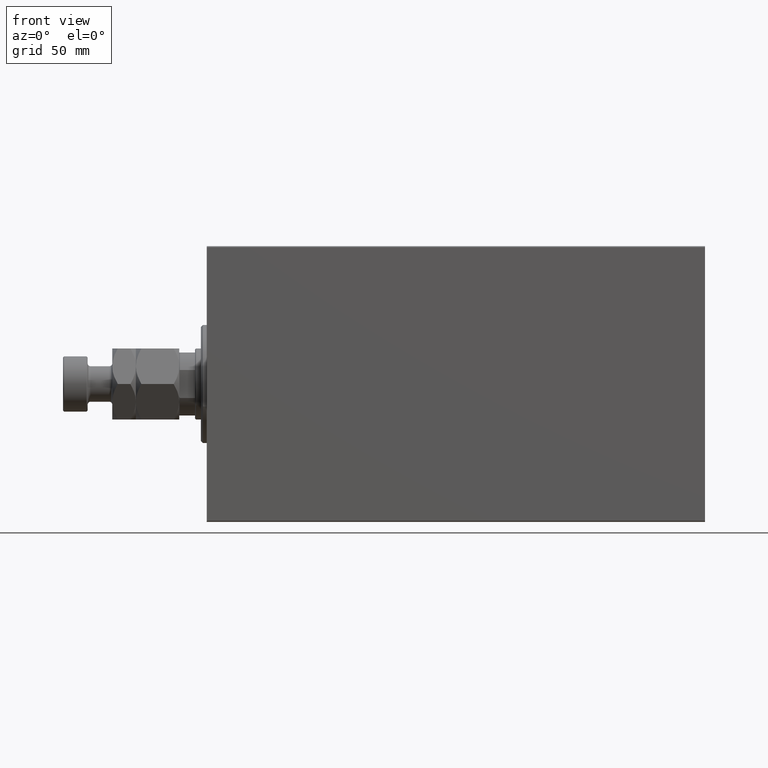
[diagram: clean part render]
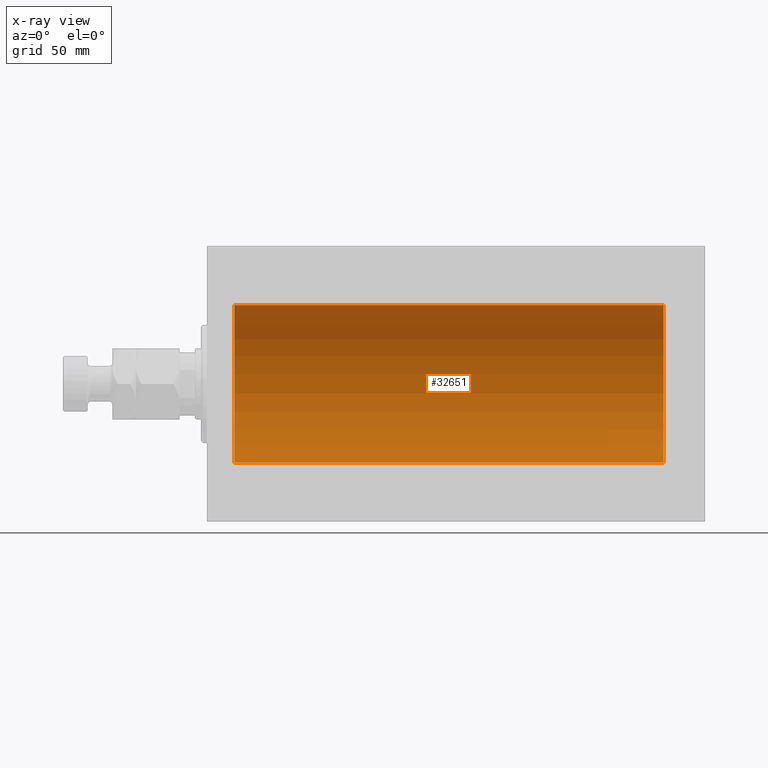
[diagram: x-ray — body ghosted, one internal face saturated and labeled with its STEP entity id]
A machine part, front view, then the same camera in x-ray: the body is ghosted and one INTERNAL B-rep face — a face not visible from any outside direction — is saturated and labeled: STEP entity #32651.
In plain terms, the highlighted cylindrical surface (partial cylindrical patch) has radius 40 mm, axis along (-1, -0, -0).
Its self-contained STEP definition (entity closure, byte-faithful):
#1254 = CARTESIAN_POINT ( 'NONE',  ( 232.0000000000000000, 0.000000000000000000, 0.000000000000000000 ) ) ;
#1352 = CARTESIAN_POINT ( 'NONE',  ( 232.0000000000000000, 0.000000000000000000, 40.00000000000000000 ) ) ;
#4658 = CARTESIAN_POINT ( 'NONE',  ( 13.99999999999998401, 0.000000000000000000, 0.000000000000000000 ) ) ;
#5338 = DIRECTION ( 'NONE',  ( -1.000000000000000000, 0.000000000000000000, 0.000000000000000000 ) ) ;
#5801 = ORIENTED_EDGE ( 'NONE', *, *, #20695, .F. ) ;
#5931 = DIRECTION ( 'NONE',  ( -1.000000000000000000, -0.000000000000000000, -0.000000000000000000 ) ) ;
#6146 = CYLINDRICAL_SURFACE ( 'NONE', #7213, 40.00000000000000000 ) ;
#6499 = VERTEX_POINT ( 'NONE', #14549 ) ;
#6609 = FACE_OUTER_BOUND ( 'NONE', #7399, .T. ) ;
#7213 = AXIS2_PLACEMENT_3D ( 'NONE', #40929, #5931, #34687 ) ;
#7399 = EDGE_LOOP ( 'NONE', ( #5801, #17660, #29783, #23721 ) ) ;
#7942 = CARTESIAN_POINT ( 'NONE',  ( 232.0000000000000000, 4.898587196589412237E-15, -40.00000000000000000 ) ) ;
#9050 = EDGE_CURVE ( 'NONE', #42573, #18667, #11945, .T. ) ;
#11945 = LINE ( 'NONE', #1352, #21057 ) ;
#12846 = VECTOR ( 'NONE', #29814, 1000.000000000000000 ) ;
#13565 = CARTESIAN_POINT ( 'NONE',  ( 13.99999999999998401, 4.898587196589412237E-15, -40.00000000000000000 ) ) ;
#14549 = CARTESIAN_POINT ( 'NONE',  ( 232.0000000000000000, 4.898587196589412237E-15, -40.00000000000000000 ) ) ;
#15079 = LINE ( 'NONE', #7942, #12846 ) ;
#17660 = ORIENTED_EDGE ( 'NONE', *, *, #34610, .F. ) ;
#18667 = VERTEX_POINT ( 'NONE', #30971 ) ;
#20695 = EDGE_CURVE ( 'NONE', #6499, #29087, #15079, .T. ) ;
#21057 = VECTOR ( 'NONE', #43480, 1000.000000000000000 ) ;
#21958 = AXIS2_PLACEMENT_3D ( 'NONE', #1254, #22445, #39249 ) ;
#22445 = DIRECTION ( 'NONE',  ( -1.000000000000000000, 0.000000000000000000, 0.000000000000000000 ) ) ;
#23721 = ORIENTED_EDGE ( 'NONE', *, *, #37439, .T. ) ;
#24251 = CIRCLE ( 'NONE', #42607, 40.00000000000000000 ) ;
#29087 = VERTEX_POINT ( 'NONE', #13565 ) ;
#29313 = DIRECTION ( 'NONE',  ( 0.000000000000000000, 0.000000000000000000, 1.000000000000000000 ) ) ;
#29783 = ORIENTED_EDGE ( 'NONE', *, *, #9050, .T. ) ;
#29814 = DIRECTION ( 'NONE',  ( -1.000000000000000000, -0.000000000000000000, -0.000000000000000000 ) ) ;
#30971 = CARTESIAN_POINT ( 'NONE',  ( 13.99999999999998401, 0.000000000000000000, 40.00000000000000000 ) ) ;
#32651 = ADVANCED_FACE ( 'NONE', ( #6609 ), #6146, .F. ) ;
#34610 = EDGE_CURVE ( 'NONE', #42573, #6499, #41785, .T. ) ;
#34687 = DIRECTION ( 'NONE',  ( 0.000000000000000000, 0.000000000000000000, 1.000000000000000000 ) ) ;
#37439 = EDGE_CURVE ( 'NONE', #18667, #29087, #24251, .T. ) ;
#39249 = DIRECTION ( 'NONE',  ( 0.000000000000000000, 0.000000000000000000, 1.000000000000000000 ) ) ;
#40929 = CARTESIAN_POINT ( 'NONE',  ( 232.0000000000000000, 0.000000000000000000, 0.000000000000000000 ) ) ;
#41785 = CIRCLE ( 'NONE', #21958, 40.00000000000000000 ) ;
#42573 = VERTEX_POINT ( 'NONE', #42828 ) ;
#42607 = AXIS2_PLACEMENT_3D ( 'NONE', #4658, #5338, #29313 ) ;
#42828 = CARTESIAN_POINT ( 'NONE',  ( 232.0000000000000000, 0.000000000000000000, 40.00000000000000000 ) ) ;
#43480 = DIRECTION ( 'NONE',  ( -1.000000000000000000, -0.000000000000000000, -0.000000000000000000 ) ) ;